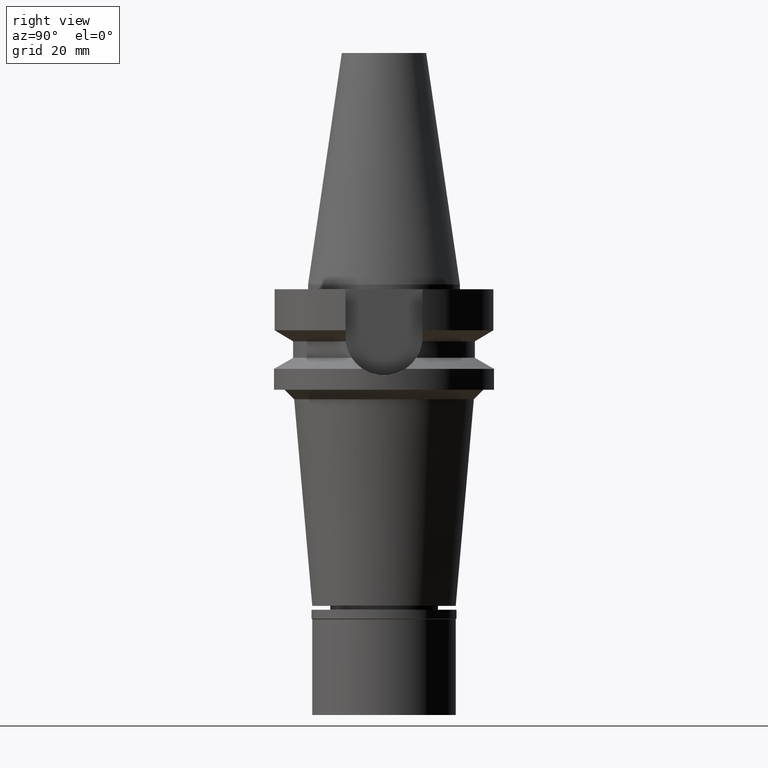
[diagram: clean part render]
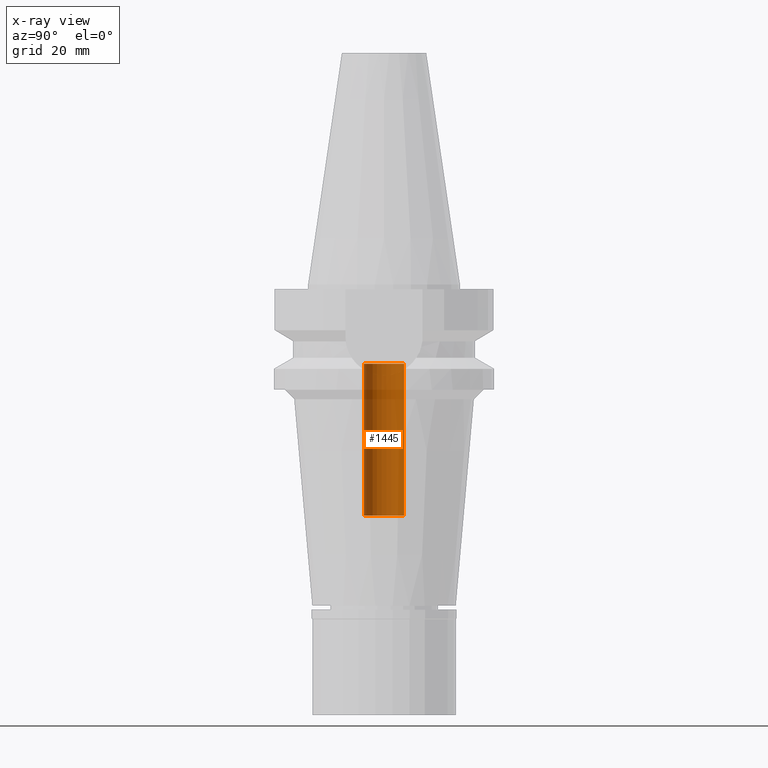
[diagram: x-ray — body ghosted, one internal face saturated and labeled with its STEP entity id]
A machine part, right view, then the same camera in x-ray: the body is ghosted and one INTERNAL B-rep face — a face not visible from any outside direction — is saturated and labeled: STEP entity #1445.
In plain terms, the highlighted cylindrical surface (edge-blend (fillet) strip) has radius 4.2 mm, axis along (0, 0, -1).
Its self-contained STEP definition (entity closure, byte-faithful):
#84 = CARTESIAN_POINT ( 'NONE',  ( 0.0000000000000000000, -4.200000000000000178, -48.30000000000000426 ) ) ;
#113 = LINE ( 'NONE', #1997, #2068 ) ;
#258 = VERTEX_POINT ( 'NONE', #2292 ) ;
#282 = DIRECTION ( 'NONE',  ( 0.0000000000000000000, 0.0000000000000000000, 1.000000000000000000 ) ) ;
#419 = VERTEX_POINT ( 'NONE', #1845 ) ;
#425 = ORIENTED_EDGE ( 'NONE', *, *, #1591, .T. ) ;
#437 = DIRECTION ( 'NONE',  ( 0.0000000000000000000, 0.0000000000000000000, -1.000000000000000000 ) ) ;
#477 = DIRECTION ( 'NONE',  ( 0.0000000000000000000, 0.0000000000000000000, 1.000000000000000000 ) ) ;
#518 = DIRECTION ( 'NONE',  ( 0.0000000000000000000, 1.000000000000000000, 0.0000000000000000000 ) ) ;
#585 = AXIS2_PLACEMENT_3D ( 'NONE', #1702, #477, #518 ) ;
#678 = CARTESIAN_POINT ( 'NONE',  ( 0.0000000000000000000, 0.0000000000000000000, -48.30000000000000426 ) ) ;
#741 = CARTESIAN_POINT ( 'NONE',  ( 0.0000000000000000000, 0.0000000000000000000, 0.0000000000000000000 ) ) ;
#815 = DIRECTION ( 'NONE',  ( 0.0000000000000000000, 0.0000000000000000000, 1.000000000000000000 ) ) ;
#904 = ORIENTED_EDGE ( 'NONE', *, *, #2923, .T. ) ;
#910 = EDGE_CURVE ( 'NONE', #2867, #419, #2900, .T. ) ;
#932 = CIRCLE ( 'NONE', #2519, 4.200000000000000178 ) ;
#957 = DIRECTION ( 'NONE',  ( 0.0000000000000000000, 0.0000000000000000000, -1.000000000000000000 ) ) ;
#1186 = CIRCLE ( 'NONE', #585, 4.200000000000000178 ) ;
#1428 = EDGE_LOOP ( 'NONE', ( #425, #2878, #904, #2176 ) ) ;
#1445 = ADVANCED_FACE ( 'NONE', ( #2657 ), #2160, .F. ) ;
#1591 = EDGE_CURVE ( 'NONE', #2718, #419, #1186, .T. ) ;
#1688 = DIRECTION ( 'NONE',  ( 0.0000000000000000000, -1.000000000000000000, 0.0000000000000000000 ) ) ;
#1702 = CARTESIAN_POINT ( 'NONE',  ( 0.0000000000000000000, 0.0000000000000000000, -16.60000000000000142 ) ) ;
#1845 = CARTESIAN_POINT ( 'NONE',  ( 0.0000000000000000000, -4.200000000000000178, -16.60000000000000142 ) ) ;
#1892 = EDGE_CURVE ( 'NONE', #258, #2718, #113, .T. ) ;
#1972 = VECTOR ( 'NONE', #282, 1000.000000000000000 ) ;
#1997 = CARTESIAN_POINT ( 'NONE',  ( 0.0000000000000000000, 4.200000000000000178, -48.30000000000000426 ) ) ;
#2068 = VECTOR ( 'NONE', #815, 1000.000000000000000 ) ;
#2160 = CYLINDRICAL_SURFACE ( 'NONE', #2574, 4.200000000000000178 ) ;
#2176 = ORIENTED_EDGE ( 'NONE', *, *, #1892, .T. ) ;
#2292 = CARTESIAN_POINT ( 'NONE',  ( 0.0000000000000000000, 4.200000000000000178, -48.30000000000000426 ) ) ;
#2320 = CARTESIAN_POINT ( 'NONE',  ( 0.0000000000000000000, -4.200000000000000178, -48.30000000000000426 ) ) ;
#2519 = AXIS2_PLACEMENT_3D ( 'NONE', #678, #437, #3025 ) ;
#2574 = AXIS2_PLACEMENT_3D ( 'NONE', #741, #957, #1688 ) ;
#2657 = FACE_OUTER_BOUND ( 'NONE', #1428, .T. ) ;
#2718 = VERTEX_POINT ( 'NONE', #2891 ) ;
#2867 = VERTEX_POINT ( 'NONE', #84 ) ;
#2878 = ORIENTED_EDGE ( 'NONE', *, *, #910, .F. ) ;
#2891 = CARTESIAN_POINT ( 'NONE',  ( 0.0000000000000000000, 4.200000000000000178, -16.60000000000000142 ) ) ;
#2900 = LINE ( 'NONE', #2320, #1972 ) ;
#2923 = EDGE_CURVE ( 'NONE', #2867, #258, #932, .T. ) ;
#3025 = DIRECTION ( 'NONE',  ( 0.0000000000000000000, -1.000000000000000000, 0.0000000000000000000 ) ) ;